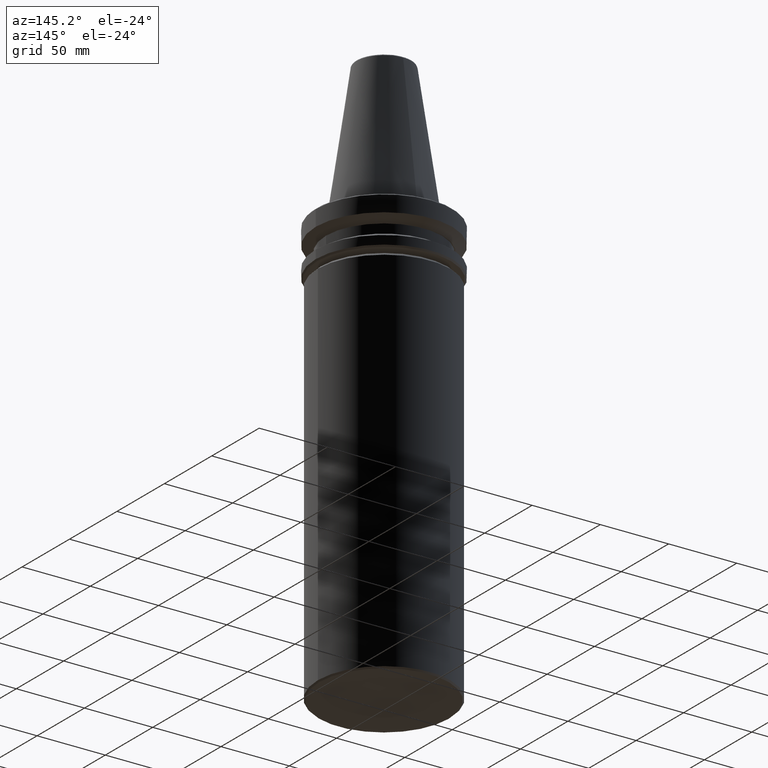
[diagram: clean part render]
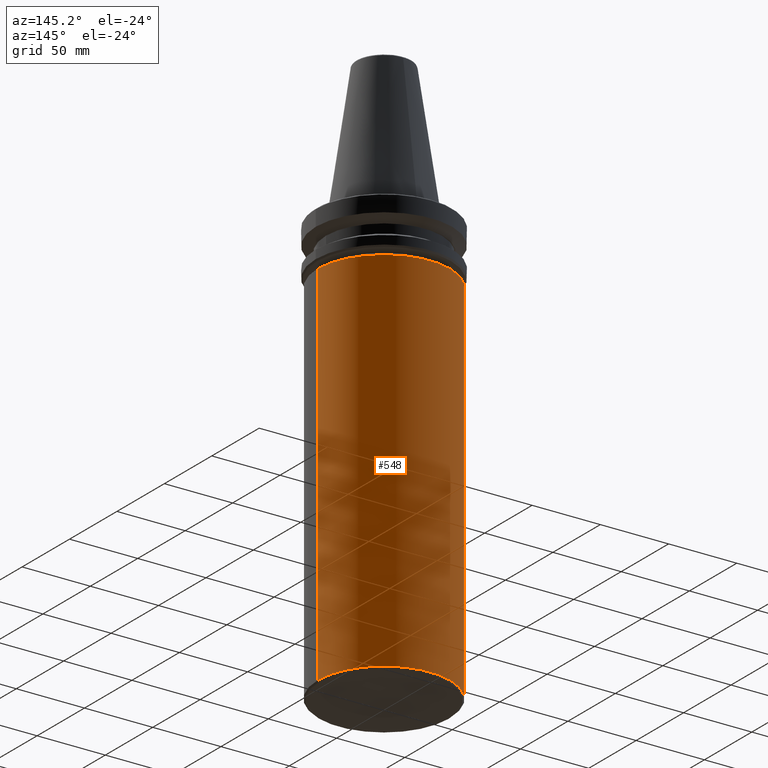
[diagram: same view with one face highlighted and labeled with its STEP entity id]
A machine part, auxiliary view. The second image highlights one B-rep face of the part: STEP entity #548.
In plain terms, the highlighted cylindrical surface (partial cylindrical patch) has radius 48.5 mm, axis along (-0, -0, 1).
Its self-contained STEP definition (entity closure, byte-faithful):
#31 = CARTESIAN_POINT ( 'NONE',  ( -48.49999999999998600, 5.939536975864661800E-015, -42.99999999999998600 ) ) ;
#47 = AXIS2_PLACEMENT_3D ( 'NONE', #569, #1294, #657 ) ;
#54 = CARTESIAN_POINT ( 'NONE',  ( -48.49999999999998600, 5.939536975864661800E-015, -314.0000000000001100 ) ) ;
#70 = CARTESIAN_POINT ( 'NONE',  ( 48.49999999999998600, 0.0000000000000000000, -314.0000000000001100 ) ) ;
#155 = EDGE_CURVE ( 'NONE', #211, #541, #1009, .T. ) ;
#164 = DIRECTION ( 'NONE',  ( 0.0000000000000000000, 0.0000000000000000000, -1.000000000000000000 ) ) ;
#211 = VERTEX_POINT ( 'NONE', #54 ) ;
#220 = CARTESIAN_POINT ( 'NONE',  ( 0.0000000000000000000, 0.0000000000000000000, 153.5021057155407800 ) ) ;
#298 = FACE_OUTER_BOUND ( 'NONE', #743, .T. ) ;
#321 = VERTEX_POINT ( 'NONE', #70 ) ;
#380 = CIRCLE ( 'NONE', #47, 48.49999999999998600 ) ;
#407 = AXIS2_PLACEMENT_3D ( 'NONE', #739, #164, #846 ) ;
#427 = CARTESIAN_POINT ( 'NONE',  ( -48.49999999999998600, 5.939536975864661800E-015, 153.5021057155407800 ) ) ;
#471 = CARTESIAN_POINT ( 'NONE',  ( 48.49999999999998600, 0.0000000000000000000, -42.99999999999998600 ) ) ;
#518 = DIRECTION ( 'NONE',  ( 1.000000000000000000, 0.0000000000000000000, 0.0000000000000000000 ) ) ;
#541 = VERTEX_POINT ( 'NONE', #31 ) ;
#548 = ADVANCED_FACE ( 'NONE', ( #298 ), #1268, .T. ) ;
#569 = CARTESIAN_POINT ( 'NONE',  ( 0.0000000000000000000, 0.0000000000000000000, -314.0000000000001100 ) ) ;
#614 = CIRCLE ( 'NONE', #407, 48.49999999999998600 ) ;
#654 = EDGE_CURVE ( 'NONE', #541, #711, #614, .T. ) ;
#657 = DIRECTION ( 'NONE',  ( 1.000000000000000000, 0.0000000000000000000, 0.0000000000000000000 ) ) ;
#693 = VECTOR ( 'NONE', #1250, 1000.000000000000000 ) ;
#711 = VERTEX_POINT ( 'NONE', #471 ) ;
#719 = LINE ( 'NONE', #1176, #966 ) ;
#739 = CARTESIAN_POINT ( 'NONE',  ( 0.0000000000000000000, 0.0000000000000000000, -42.99999999999998600 ) ) ;
#743 = EDGE_LOOP ( 'NONE', ( #807, #1247, #1260, #781 ) ) ;
#781 = ORIENTED_EDGE ( 'NONE', *, *, #887, .F. ) ;
#807 = ORIENTED_EDGE ( 'NONE', *, *, #1296, .T. ) ;
#846 = DIRECTION ( 'NONE',  ( 1.000000000000000000, 0.0000000000000000000, 0.0000000000000000000 ) ) ;
#887 = EDGE_CURVE ( 'NONE', #321, #711, #719, .T. ) ;
#966 = VECTOR ( 'NONE', #1283, 1000.000000000000000 ) ;
#975 = AXIS2_PLACEMENT_3D ( 'NONE', #220, #1126, #518 ) ;
#1009 = LINE ( 'NONE', #427, #693 ) ;
#1126 = DIRECTION ( 'NONE',  ( -0.0000000000000000000, -0.0000000000000000000, 1.000000000000000000 ) ) ;
#1176 = CARTESIAN_POINT ( 'NONE',  ( 48.49999999999998600, 0.0000000000000000000, 153.5021057155407800 ) ) ;
#1247 = ORIENTED_EDGE ( 'NONE', *, *, #155, .T. ) ;
#1250 = DIRECTION ( 'NONE',  ( -0.0000000000000000000, -0.0000000000000000000, 1.000000000000000000 ) ) ;
#1260 = ORIENTED_EDGE ( 'NONE', *, *, #654, .T. ) ;
#1268 = CYLINDRICAL_SURFACE ( 'NONE', #975, 48.49999999999998600 ) ;
#1283 = DIRECTION ( 'NONE',  ( -0.0000000000000000000, -0.0000000000000000000, 1.000000000000000000 ) ) ;
#1294 = DIRECTION ( 'NONE',  ( -0.0000000000000000000, -0.0000000000000000000, 1.000000000000000000 ) ) ;
#1296 = EDGE_CURVE ( 'NONE', #321, #211, #380, .T. ) ;